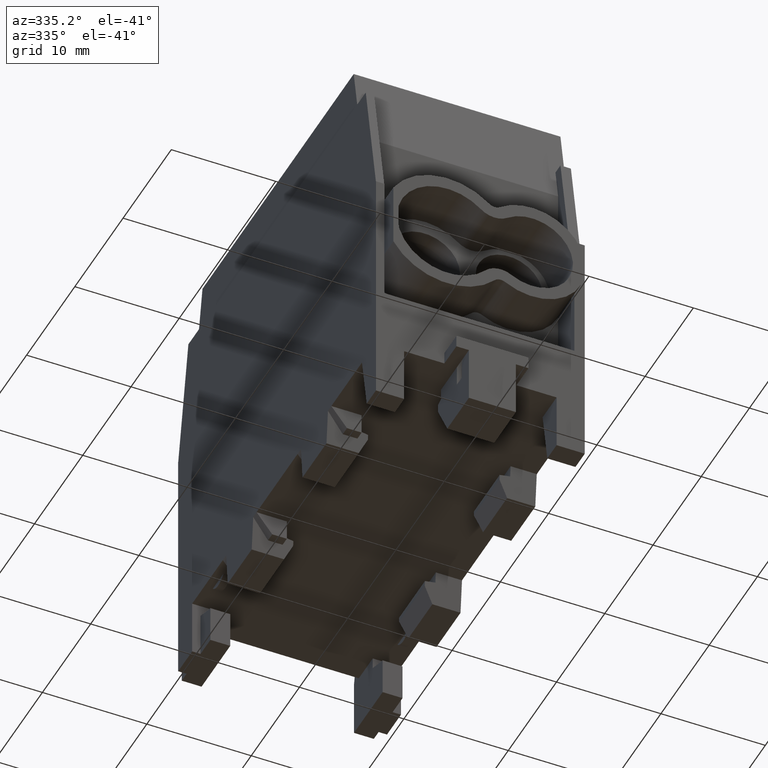
[diagram: clean part render]
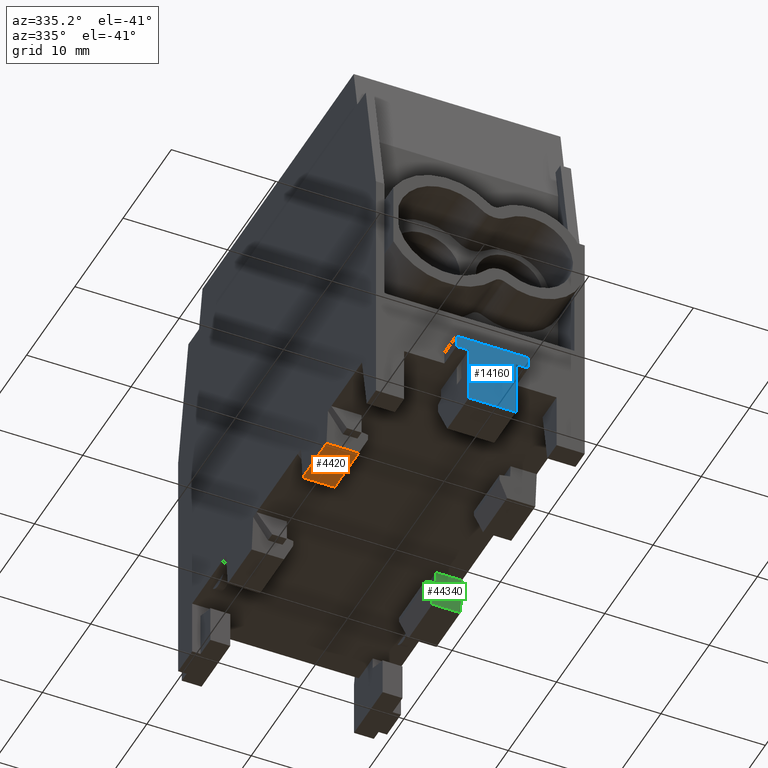
[diagram: same view with three faces highlighted in distinct colors, each labeled with its STEP entity id]
A machine part, auxiliary view with three faces highlighted in distinct colors.
Their STEP definitions:

[orange] entity #4420 — the highlighted planar face has unit normal (0, 0, -1).
#4030=CARTESIAN_POINT('',(6.9037619290508,11.25,-39.245359338705));
#4040=DIRECTION('',(-6.57605532649422E-15,-5.80952514931359E-16,-1.));
#4050=DIRECTION('',(1.,-2.77555756156293E-16,-6.57605532649422E-15));
#4060=AXIS2_PLACEMENT_3D('',#4030,#4040,#4050);
#4070=PLANE('',#4060);
#4080=CARTESIAN_POINT('',(10.,-4.80148746272509E-15,-39.245359338705));
#4090=DIRECTION('',(-1.70544636617791E-32,-1.,5.80952514931359E-16));
#4100=VECTOR('',#4090,1.);
#4110=LINE('',#4080,#4100);
#4120=CARTESIAN_POINT('',(10.,10.2438803694519,-39.245359338705));
#4130=VERTEX_POINT('',#4120);
#4140=CARTESIAN_POINT('',(10.,5.25611963054812,-39.245359338705));
#4150=VERTEX_POINT('',#4140);
#4160=EDGE_CURVE('',#4130,#4150,#4110,.T.);
#4170=ORIENTED_EDGE('',*,*,#4160,.T.);
#4180=CARTESIAN_POINT('',(1.3741586014246E-15,10.2438803694519,
-39.2453593387049));
#4190=DIRECTION('',(-1.,8.48029451511799E-16,6.57605532649422E-15));
#4200=VECTOR('',#4190,1.);
#4210=LINE('',#4180,#4200);
#4220=CARTESIAN_POINT('',(6.9037619290508,10.2438803694519,
-39.245359338705));
#4230=VERTEX_POINT('',#4220);
#4240=EDGE_CURVE('',#4130,#4230,#4210,.T.);
#4250=ORIENTED_EDGE('',*,*,#4240,.F.);
#4260=CARTESIAN_POINT('',(6.9037619290508,-4.80148746272508E-15,
-39.245359338705));
#4270=DIRECTION('',(2.77555756156289E-16,1.,-5.80952514931361E-16));
#4280=VECTOR('',#4270,1.);
#4290=LINE('',#4260,#4280);
#4300=CARTESIAN_POINT('',(6.90376192905079,5.25611963054812,
-39.245359338705));
#4310=VERTEX_POINT('',#4300);
#4320=EDGE_CURVE('',#4310,#4230,#4290,.T.);
#4330=ORIENTED_EDGE('',*,*,#4320,.T.);
#4340=CARTESIAN_POINT('',(1.3741586014246E-15,5.25611963054812,
-39.2453593387049));
#4350=DIRECTION('',(-1.,-2.92917939199214E-16,6.57605532649422E-15));
#4360=VECTOR('',#4350,1.);
#4370=LINE('',#4340,#4360);
#4380=EDGE_CURVE('',#4150,#4310,#4370,.T.);
#4390=ORIENTED_EDGE('',*,*,#4380,.T.);
#4400=EDGE_LOOP('',(#4390,#4330,#4250,#4170));
#4410=FACE_OUTER_BOUND('',#4400,.T.);
#4420=ADVANCED_FACE('',(#4410),#4070,.T.);

[blue] entity #14160 — the highlighted planar face has unit normal (-0, -1, -0).
#3270=CARTESIAN_POINT('',(-3.45,23.,-34.545359338705));
#3280=VERTEX_POINT('',#3270);
#3310=CARTESIAN_POINT('',(1.63506101221151E-15,23.,-34.545359338705));
#3320=DIRECTION('',(-1.,4.93038065763132E-32,5.55111512312577E-17));
#3330=VECTOR('',#3320,1.);
#3340=LINE('',#3310,#3330);
#3350=CARTESIAN_POINT('',(3.45,23.,-34.545359338705));
#3360=VERTEX_POINT('',#3350);
#3370=EDGE_CURVE('',#3360,#3280,#3340,.T.);
#6370=CARTESIAN_POINT('',(3.45,23.,7.04121579162751E-15));
#6380=DIRECTION('',(-5.55111512312577E-17,-3.03396758775072E-16,-1.));
#6390=VECTOR('',#6380,1.);
#6400=LINE('',#6370,#6390);
#6410=CARTESIAN_POINT('',(3.45,23.,-35.745359338705));
#6420=VERTEX_POINT('',#6410);
#6430=EDGE_CURVE('',#3360,#6420,#6400,.T.);
#9760=CARTESIAN_POINT('',(-2.25,23.,-41.245359338705));
#9770=VERTEX_POINT('',#9760);
#9940=CARTESIAN_POINT('',(2.25,23.,-41.245359338705));
#9950=VERTEX_POINT('',#9940);
#9980=CARTESIAN_POINT('',(1.26313629896208E-15,23.,-41.245359338705));
#9990=DIRECTION('',(1.,-4.93038065763132E-32,-5.55111512312577E-17));
#10000=VECTOR('',#9990,1.);
#10010=LINE('',#9980,#10000);
#10020=EDGE_CURVE('',#9770,#9950,#10010,.T.);
#11970=CARTESIAN_POINT('',(2.25,23.,7.10782917310502E-15));
#11980=DIRECTION('',(-5.55111512312577E-17,-3.03396758775072E-16,-1.));
#11990=VECTOR('',#11980,1.);
#12000=LINE('',#11970,#11990);
#12010=CARTESIAN_POINT('',(2.25,23.,-35.745359338705));
#12020=VERTEX_POINT('',#12010);
#12030=EDGE_CURVE('',#12020,#9950,#12000,.T.);
#13810=CARTESIAN_POINT('',(2.25,23.,-35.645359338705));
#13820=DIRECTION('',(3.24619032168768E-32,1.,-3.03396758775072E-16));
#13830=DIRECTION('',(5.55111512312577E-17,3.03396758775072E-16,1.));
#13840=AXIS2_PLACEMENT_3D('',#13810,#13820,#13830);
#13850=PLANE('',#13840);
#13860=CARTESIAN_POINT('',(-2.25,23.,7.35762935364568E-15));
#13870=DIRECTION('',(5.55111512312577E-17,3.03396758775072E-16,1.));
#13880=VECTOR('',#13870,1.);
#13890=LINE('',#13860,#13880);
#13900=CARTESIAN_POINT('',(-2.25,23.,-35.745359338705));
#13910=VERTEX_POINT('',#13900);
#13920=EDGE_CURVE('',#9770,#13910,#13890,.T.);
#13930=ORIENTED_EDGE('',*,*,#13920,.T.);
#13940=ORIENTED_EDGE('',*,*,#10020,.F.);
#13950=ORIENTED_EDGE('',*,*,#12030,.T.);
#13960=CARTESIAN_POINT('',(1.568447630734E-15,23.,-35.745359338705));
#13970=DIRECTION('',(-1.,4.93038065763132E-32,5.55111512312577E-17));
#13980=VECTOR('',#13970,1.);
#13990=LINE('',#13960,#13980);
#14000=EDGE_CURVE('',#6420,#12020,#13990,.T.);
#14010=ORIENTED_EDGE('',*,*,#14000,.T.);
#14020=ORIENTED_EDGE('',*,*,#6430,.T.);
#14030=ORIENTED_EDGE('',*,*,#3370,.F.);
#14040=CARTESIAN_POINT('',(-3.45,23.,7.42424273512319E-15));
#14050=DIRECTION('',(5.55111512312577E-17,3.03396758775072E-16,1.));
#14060=VECTOR('',#14050,1.);
#14070=LINE('',#14040,#14060);
#14080=CARTESIAN_POINT('',(-3.45,23.,-35.745359338705));
#14090=VERTEX_POINT('',#14080);
#14100=EDGE_CURVE('',#14090,#3280,#14070,.T.);
#14110=ORIENTED_EDGE('',*,*,#14100,.T.);
#14120=EDGE_CURVE('',#13910,#14090,#13990,.T.);
#14130=ORIENTED_EDGE('',*,*,#14120,.T.);
#14140=EDGE_LOOP('',(#14130,#14110,#14030,#14020,#14010,#13950,#13940,
#13930));
#14150=FACE_OUTER_BOUND('',#14140,.T.);
#14160=ADVANCED_FACE('',(#14150),#13850,.T.);

[green] entity #44340 — the highlighted planar face has unit normal (-0, -0.9962, -0.0872).
#40090=CARTESIAN_POINT('',(-10.,-5.25611963054813,-39.245359338705));
#40100=VERTEX_POINT('',#40090);
#40130=CARTESIAN_POINT('',(-9.99999999999999,-1.82259559241016,
7.105427357601E-15));
#40140=DIRECTION('',(5.55111512312578E-17,0.0871557427476589,
0.996194698091746));
#40150=VECTOR('',#40140,1.);
#40160=LINE('',#40130,#40150);
#40170=CARTESIAN_POINT('',(-10.,-4.94990930820739,-35.745359338705));
#40180=VERTEX_POINT('',#40170);
#40190=EDGE_CURVE('',#40100,#40180,#40160,.T.);
#43560=CARTESIAN_POINT('',(-7.5,-5.04614683808591,-36.845359338705));
#43570=DIRECTION('',(1.76721111597388E-16,0.087155742747659,
0.996194698091746));
#43580=VECTOR('',#43570,1.);
#43590=LINE('',#43560,#43580);
#43600=CARTESIAN_POINT('',(-7.49999999999999,-5.04614683808591,
-36.845359338705));
#43610=VERTEX_POINT('',#43600);
#43620=CARTESIAN_POINT('',(-7.5,-4.94990930820739,-35.745359338705));
#43630=VERTEX_POINT('',#43620);
#43640=EDGE_CURVE('',#43610,#43630,#43590,.T.);
#43890=CARTESIAN_POINT('',(-7.49999999999999,-4.25,-27.745359338705));
#43900=DIRECTION('',(2.71661457091403E-16,0.996194698091746,
-0.0871557427476589));
#43910=DIRECTION('',(-7.94904926232374E-17,-0.0871557427476589,
-0.996194698091746));
#43920=AXIS2_PLACEMENT_3D('',#43890,#43900,#43910);
#43930=PLANE('',#43920);
#43940=CARTESIAN_POINT('',(3.5527136788005E-15,-5.25611963054812,
-39.2453593387049));
#43950=DIRECTION('',(-1.,-6.10545446523883E-16,-1.00955320455483E-14));
#43960=VECTOR('',#43950,1.);
#43970=LINE('',#43940,#43960);
#43980=CARTESIAN_POINT('',(-7.30376192905079,-5.25611963054813,
-39.245359338705));
#43990=VERTEX_POINT('',#43980);
#44000=EDGE_CURVE('',#43990,#40100,#43970,.T.);
#44010=ORIENTED_EDGE('',*,*,#44000,.T.);
#44020=CARTESIAN_POINT('',(10.9966496776322,-1.82259559241017,
1.41533876272048E-14));
#44030=DIRECTION('',(-0.421295957875004,-0.0790435663209857,
-0.903472097245644));
#44040=VECTOR('',#44030,1.);
#44050=LINE('',#44020,#44040);
#44060=CARTESIAN_POINT('',(-6.5,-5.10531778173462,-37.5216863194134));
#44070=VERTEX_POINT('',#44060);
#44080=EDGE_CURVE('',#44070,#43990,#44050,.T.);
#44090=ORIENTED_EDGE('',*,*,#44080,.T.);
#44100=CARTESIAN_POINT('',(-6.49999999999999,-5.10531778173462,
-37.5216863194134));
#44110=DIRECTION('',(7.94904926232374E-17,0.0871557427476592,
0.996194698091746));
#44120=VECTOR('',#44110,1.);
#44130=LINE('',#44100,#44120);
#44140=CARTESIAN_POINT('',(-6.49999999999999,-5.06157344997165,
-37.0216863194134));
#44150=VERTEX_POINT('',#44140);
#44160=EDGE_CURVE('',#44070,#44150,#44130,.T.);
#44170=ORIENTED_EDGE('',*,*,#44160,.F.);
#44180=CARTESIAN_POINT('',(-7.5,-5.04614683808591,-36.845359338705));
#44190=DIRECTION('',(0.984694123715651,-0.0151904940727358,
-0.173628141756145));
#44200=VECTOR('',#44190,1.);
#44210=LINE('',#44180,#44200);
#44220=EDGE_CURVE('',#43610,#44150,#44210,.T.);
#44230=ORIENTED_EDGE('',*,*,#44220,.T.);
#44240=ORIENTED_EDGE('',*,*,#43640,.F.);
#44250=CARTESIAN_POINT('',(1.568447630734E-15,-4.9499093082074,
-35.745359338705));
#44260=DIRECTION('',(-1.,2.77555756156289E-16,5.55111512312576E-17));
#44270=VECTOR('',#44260,1.);
#44280=LINE('',#44250,#44270);
#44290=EDGE_CURVE('',#43630,#40180,#44280,.T.);
#44300=ORIENTED_EDGE('',*,*,#44290,.F.);
#44310=ORIENTED_EDGE('',*,*,#40190,.T.);
#44320=EDGE_LOOP('',(#44310,#44300,#44240,#44230,#44170,#44090,#44010));
#44330=FACE_OUTER_BOUND('',#44320,.T.);
#44340=ADVANCED_FACE('',(#44330),#43930,.T.);